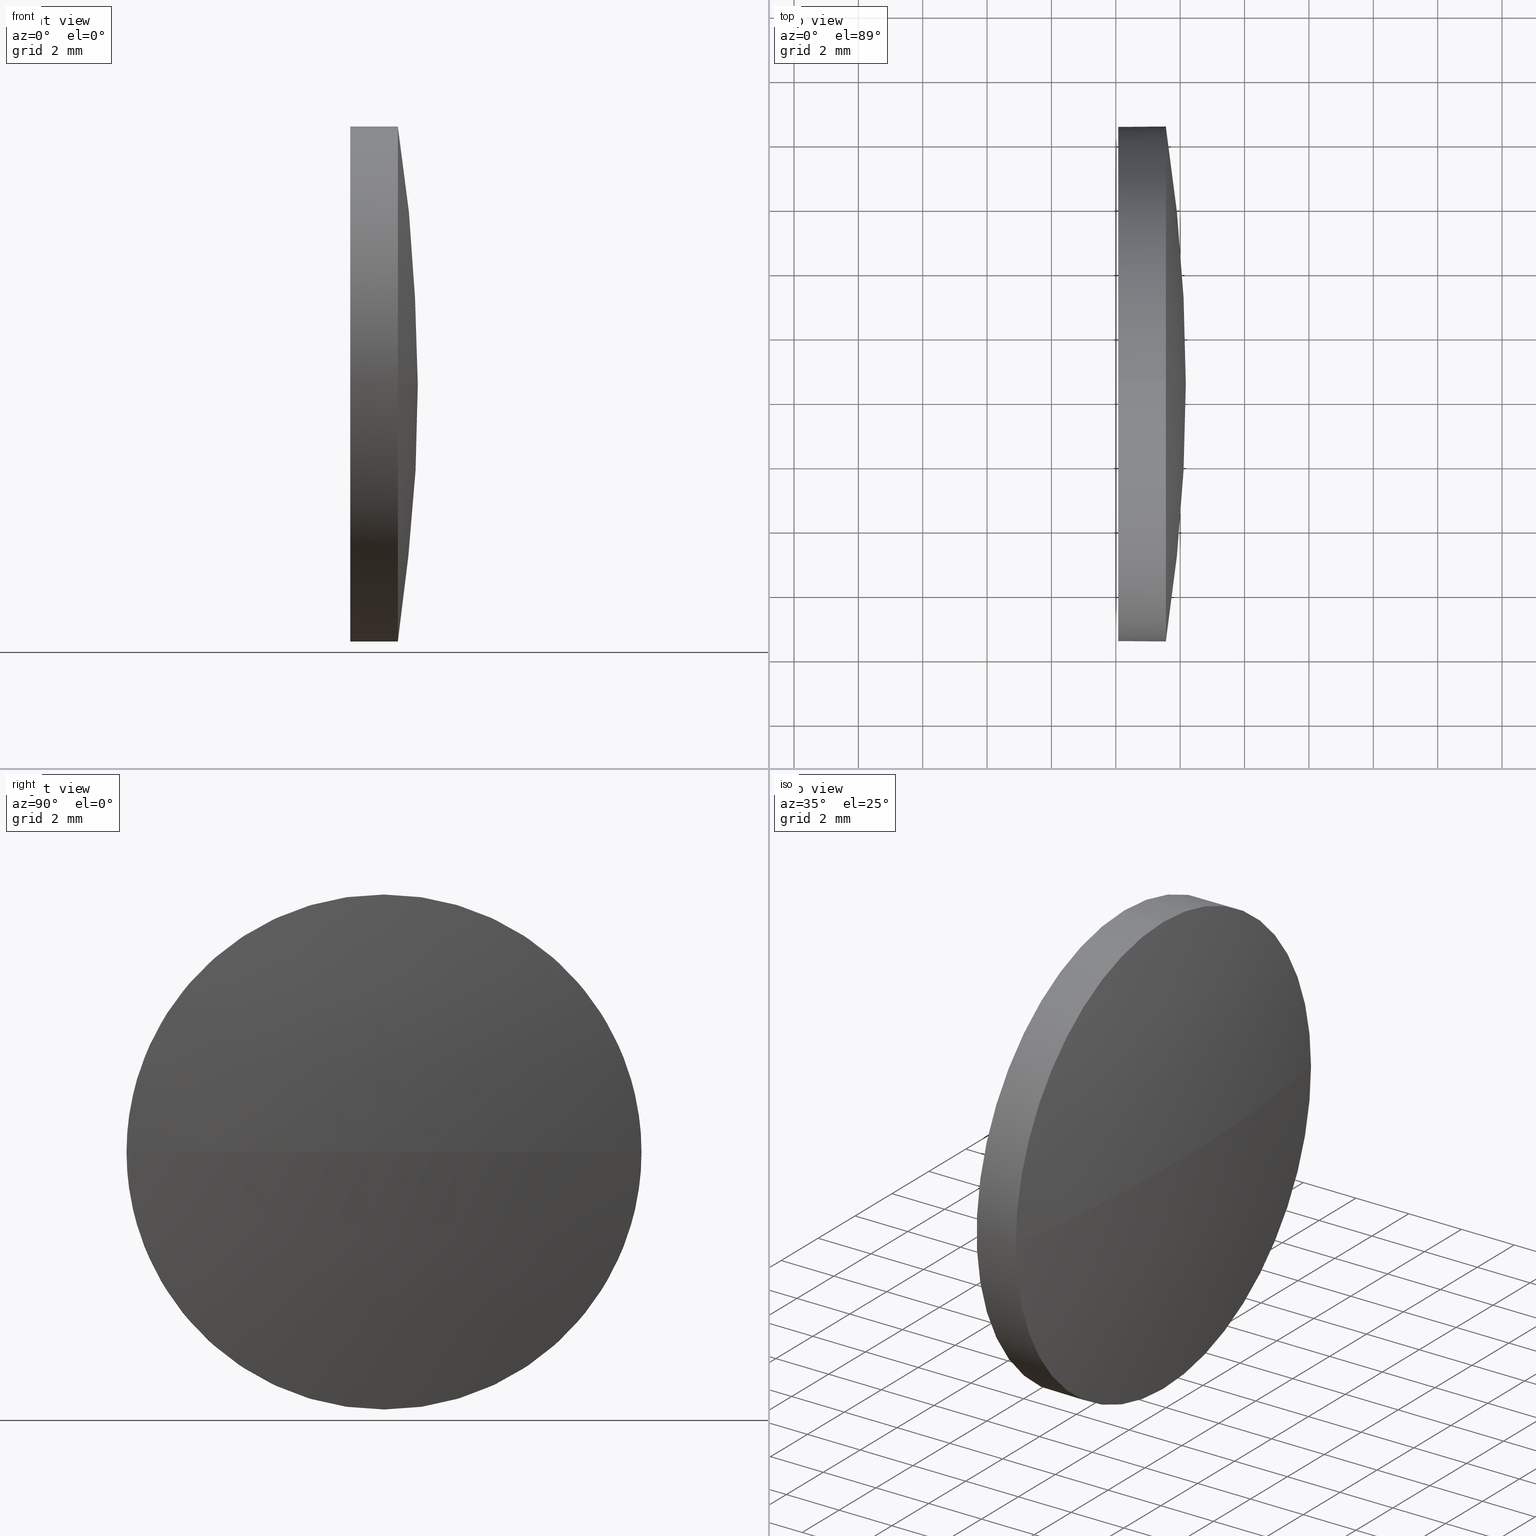
[diagram: canonical four-view strip — front | top / right | iso, engineering-drawing reading convention]
A machine part, canonical four-view strip (front | top / right | iso — engineering-drawing reading convention). The complete STEP part file that produces these views, byte-faithful:
ISO-10303-21;
HEADER;
FILE_DESCRIPTION (( 'STEP AP214' ),
    '1' );
FILE_NAME ('100118.STEP',
    '2019-05-14T03:52:08',
    ( '' ),
    ( '' ),
    'SwSTEP 2.0',
    'SolidWorks 2016',
    '' );
FILE_SCHEMA (( 'AUTOMOTIVE_DESIGN' ));
ENDSEC;

DATA;
#1 = EDGE_CURVE ( 'NONE', #99, #56, #101, .T. ) ;
#2 = DIRECTION ( 'NONE',  ( 1.000000000000000000, 0.0000000000000000000, 0.0000000000000000000 ) ) ;
#3 = FACE_OUTER_BOUND ( 'NONE', #47, .T. ) ;
#4 = CARTESIAN_POINT ( 'NONE',  ( 667.5536510589195100, 92.48951843981319600, -8.000000000000007100 ) ) ;
#5 = DIRECTION ( 'NONE',  ( 0.0000000000000000000, 0.0000000000000000000, 1.000000000000000000 ) ) ;
#6 = EDGE_CURVE ( 'NONE', #140, #27, #28, .T. ) ;
#7 = DIRECTION ( 'NONE',  ( -1.000000000000000000, -0.0000000000000000000, -0.0000000000000000000 ) ) ;
#8 = ADVANCED_FACE ( 'NONE', ( #3 ), #35, .T. ) ;
#9 = DIRECTION ( 'NONE',  ( 0.0000000000000000000, -1.000000000000000000, 0.0000000000000000000 ) ) ;
#10 = CARTESIAN_POINT ( 'NONE',  ( 0.0000000000000000000, 0.0000000000000000000, 0.0000000000000000000 ) ) ;
#11 = COLOUR_RGB ( '',1.000000000000000000, 1.000000000000000000, 1.000000000000000000 ) ;
#12 = ORIENTED_EDGE ( 'NONE', *, *, #177, .F. ) ;
#13 = AXIS2_PLACEMENT_3D ( 'NONE', #144, #31, #9 ) ;
#14 = ORIENTED_EDGE ( 'NONE', *, *, #6, .F. ) ;
#15 = ORIENTED_EDGE ( 'NONE', *, *, #154, .F. ) ;
#16 = PRODUCT ( '100118', '100118', '', ( #93 ) ) ;
#17 = CARTESIAN_POINT ( 'NONE',  ( 666.0736510589196100, 92.48951843981319600, 0.0000000000000000000 ) ) ;
#18 = DIRECTION ( 'NONE',  ( 0.0000000000000000000, 0.0000000000000000000, -1.000000000000000000 ) ) ;
#19 = SPHERICAL_SURFACE ( 'NONE', #61, 51.92290322580650000 ) ;
#20 = EDGE_LOOP ( 'NONE', ( #128, #108, #174, #146 ) ) ;
#21 = CARTESIAN_POINT ( 'NONE',  ( 667.5536510589195100, 100.4895184398132200, 9.797174393178378000E-016 ) ) ;
#22 = CARTESIAN_POINT ( 'NONE',  ( 668.1736510589194000, 92.48951843981359400, 0.0000000000000000000 ) ) ;
#23 = FACE_OUTER_BOUND ( 'NONE', #161, .T. ) ;
#24 = DIRECTION ( 'NONE',  ( 0.0000000000000000000, 0.0000000000000000000, 1.000000000000000000 ) ) ;
#25 = UNCERTAINTY_MEASURE_WITH_UNIT (LENGTH_MEASURE( 1.000000000000000100E-005 ), #87, 'distance_accuracy_value', 'NONE');
#26 =( LENGTH_UNIT ( ) NAMED_UNIT ( * ) SI_UNIT ( .MILLI., .METRE. ) );
#27 = VERTEX_POINT ( 'NONE', #149 ) ;
#28 = CIRCLE ( 'NONE', #43, 8.000000000000007100 ) ;
#29 = CARTESIAN_POINT ( 'NONE',  ( 667.5536510589195100, 84.48951843981356500, 0.0000000000000000000 ) ) ;
#30 = CARTESIAN_POINT ( 'NONE',  ( 666.0736510589196100, 92.48951843981319600, 0.0000000000000000000 ) ) ;
#31 = DIRECTION ( 'NONE',  ( 0.0000000000000000000, 0.0000000000000000000, 1.000000000000000000 ) ) ;
#32 = VERTEX_POINT ( 'NONE', #29 ) ;
#33 = DIRECTION ( 'NONE',  ( -1.000000000000000000, -0.0000000000000000000, -0.0000000000000000000 ) ) ;
#34 = FILL_AREA_STYLE_COLOUR ( '', #11 ) ;
#35 = CYLINDRICAL_SURFACE ( 'NONE', #97, 8.000000000000007100 ) ;
#36 = DIRECTION ( 'NONE',  ( 1.000000000000000000, 0.0000000000000000000, 0.0000000000000000000 ) ) ;
#37 = ORIENTED_EDGE ( 'NONE', *, *, #162, .T. ) ;
#38 = AXIS2_PLACEMENT_3D ( 'NONE', #167, #105, #85 ) ;
#39 = SURFACE_SIDE_STYLE ('',( #152 ) ) ;
#40 = ADVANCED_FACE ( 'NONE', ( #23 ), #111, .F. ) ;
#41 = PRODUCT_RELATED_PRODUCT_CATEGORY ( 'part', '', ( #16 ) ) ;
#42 = ORIENTED_EDGE ( 'NONE', *, *, #1, .T. ) ;
#43 = AXIS2_PLACEMENT_3D ( 'NONE', #30, #33, #126 ) ;
#44 = SPHERICAL_SURFACE ( 'NONE', #13, 51.92290322580650000 ) ;
#45 = ORIENTED_EDGE ( 'NONE', *, *, #148, .T. ) ;
#46 = CARTESIAN_POINT ( 'NONE',  ( 667.5536510589195100, 92.48951843981319600, 0.0000000000000000000 ) ) ;
#47 = EDGE_LOOP ( 'NONE', ( #42, #37, #170, #113, #45 ) ) ;
#48 = DIRECTION ( 'NONE',  ( -1.000000000000000000, -0.0000000000000000000, -0.0000000000000000000 ) ) ;
#49 = CARTESIAN_POINT ( 'NONE',  ( 664.1508343540738200, 92.48951843981319600, 0.0000000000000000000 ) ) ;
#50 = CARTESIAN_POINT ( 'NONE',  ( 667.5536510589195100, 92.48951843981319600, 0.0000000000000000000 ) ) ;
#51 = PRESENTATION_LAYER_ASSIGNMENT (  '', '', ( #96 ) ) ;
#52 = DIRECTION ( 'NONE',  ( 0.0000000000000000000, -1.224646799147353200E-016, 1.000000000000000000 ) ) ;
#53 =( NAMED_UNIT ( * ) SI_UNIT ( $, .STERADIAN. ) SOLID_ANGLE_UNIT ( ) );
#54 =( GEOMETRIC_REPRESENTATION_CONTEXT ( 3 ) GLOBAL_UNCERTAINTY_ASSIGNED_CONTEXT ( ( #102 ) ) GLOBAL_UNIT_ASSIGNED_CONTEXT ( ( #26, #120, #91 ) ) REPRESENTATION_CONTEXT ( 'NONE', 'WORKASPACE' ) );
#55 = AXIS2_PLACEMENT_3D ( 'NONE', #129, #150, #59 ) ;
#56 = VERTEX_POINT ( 'NONE', #4 ) ;
#57 = PRESENTATION_LAYER_ASSIGNMENT (  '', '', ( #114 ) ) ;
#58 = ORIENTED_EDGE ( 'NONE', *, *, #154, .T. ) ;
#59 = DIRECTION ( 'NONE',  ( -1.000000000000000000, 0.0000000000000000000, 0.0000000000000000000 ) ) ;
#60 = CARTESIAN_POINT ( 'NONE',  ( 667.5536510589195100, 92.48951843981319600, 0.0000000000000000000 ) ) ;
#61 = AXIS2_PLACEMENT_3D ( 'NONE', #179, #5, #168 ) ;
#62 = CARTESIAN_POINT ( 'NONE',  ( 616.2507478331130000, 92.48951843981359400, 0.0000000000000000000 ) ) ;
#63 = ADVANCED_FACE ( 'NONE', ( #183 ), #44, .T. ) ;
#64 = DIRECTION ( 'NONE',  ( -1.000000000000000000, -0.0000000000000000000, -0.0000000000000000000 ) ) ;
#65 = DIRECTION ( 'NONE',  ( 0.0000000000000000000, -1.000000000000000000, -1.224646799147353200E-016 ) ) ;
#66 = CIRCLE ( 'NONE', #55, 51.92290322580650800 ) ;
#67 = APPLICATION_CONTEXT ( 'automotive_design' ) ;
#68 =( GEOMETRIC_REPRESENTATION_CONTEXT ( 3 ) GLOBAL_UNCERTAINTY_ASSIGNED_CONTEXT ( ( #25 ) ) GLOBAL_UNIT_ASSIGNED_CONTEXT ( ( #87, #104, #131 ) ) REPRESENTATION_CONTEXT ( 'NONE', 'WORKASPACE' ) );
#69 = APPLICATION_PROTOCOL_DEFINITION ( 'draft international standard', 'automotive_design', 1998, #181 ) ;
#70 = SURFACE_STYLE_FILL_AREA ( #178 ) ;
#71 = EDGE_LOOP ( 'NONE', ( #78, #58, #94, #80, #14 ) ) ;
#72 = CIRCLE ( 'NONE', #38, 8.000000000000007100 ) ;
#73 = EDGE_CURVE ( 'NONE', #27, #140, #89, .T. ) ;
#74 = CARTESIAN_POINT ( 'NONE',  ( 664.1508343540738200, 92.48951843981319600, 0.0000000000000000000 ) ) ;
#75 = FILL_AREA_STYLE_COLOUR ( '', #145 ) ;
#76 = CARTESIAN_POINT ( 'NONE',  ( 667.5536510589195100, 92.48951843981319600, 8.000000000000007100 ) ) ;
#77 = FACE_OUTER_BOUND ( 'NONE', #71, .T. ) ;
#78 = ORIENTED_EDGE ( 'NONE', *, *, #162, .F. ) ;
#79 = LINE ( 'NONE', #134, #185 ) ;
#80 = ORIENTED_EDGE ( 'NONE', *, *, #84, .T. ) ;
#81 = UNCERTAINTY_MEASURE_WITH_UNIT (LENGTH_MEASURE( 1.000000000000000100E-005 ), #86, 'distance_accuracy_value', 'NONE');
#82 = AXIS2_PLACEMENT_3D ( 'NONE', #49, #117, #132 ) ;
#83 = VERTEX_POINT ( 'NONE', #76 ) ;
#84 = EDGE_CURVE ( 'NONE', #83, #27, #112, .T. ) ;
#85 = DIRECTION ( 'NONE',  ( 0.0000000000000000000, 0.0000000000000000000, 1.000000000000000000 ) ) ;
#86 =( LENGTH_UNIT ( ) NAMED_UNIT ( * ) SI_UNIT ( .MILLI., .METRE. ) );
#87 =( LENGTH_UNIT ( ) NAMED_UNIT ( * ) SI_UNIT ( .MILLI., .METRE. ) );
#88 = SURFACE_STYLE_USAGE ( .BOTH. , #169 ) ;
#89 = CIRCLE ( 'NONE', #110, 8.000000000000007100 ) ;
#90 = DIRECTION ( 'NONE',  ( 0.0000000000000000000, 0.0000000000000000000, 1.000000000000000000 ) ) ;
#91 =( NAMED_UNIT ( * ) SI_UNIT ( $, .STERADIAN. ) SOLID_ANGLE_UNIT ( ) );
#92 =( GEOMETRIC_REPRESENTATION_CONTEXT ( 3 ) GLOBAL_UNCERTAINTY_ASSIGNED_CONTEXT ( ( #81 ) ) GLOBAL_UNIT_ASSIGNED_CONTEXT ( ( #86, #160, #53 ) ) REPRESENTATION_CONTEXT ( 'NONE', 'WORKASPACE' ) );
#93 = PRODUCT_CONTEXT ( 'NONE', #67, 'mechanical' ) ;
#94 = ORIENTED_EDGE ( 'NONE', *, *, #172, .T. ) ;
#95 = ORIENTED_EDGE ( 'NONE', *, *, #6, .T. ) ;
#96 = STYLED_ITEM ( 'NONE', ( #137 ), #164 ) ;
#97 = AXIS2_PLACEMENT_3D ( 'NONE', #74, #127, #163 ) ;
#98 = PRODUCT_DEFINITION_CONTEXT ( 'detailed design', #181, 'design' ) ;
#99 = VERTEX_POINT ( 'NONE', #21 ) ;
#100 = CIRCLE ( 'NONE', #130, 8.000000000000007100 ) ;
#101 = CIRCLE ( 'NONE', #141, 8.000000000000007100 ) ;
#102 = UNCERTAINTY_MEASURE_WITH_UNIT (LENGTH_MEASURE( 1.000000000000000100E-005 ), #26, 'distance_accuracy_value', 'NONE');
#103 = MECHANICAL_DESIGN_GEOMETRIC_PRESENTATION_REPRESENTATION (  '', ( #96 ), #54 ) ;
#104 =( NAMED_UNIT ( * ) PLANE_ANGLE_UNIT ( ) SI_UNIT ( $, .RADIAN. ) );
#105 = DIRECTION ( 'NONE',  ( -1.000000000000000000, -0.0000000000000000000, -0.0000000000000000000 ) ) ;
#106 = FILL_AREA_STYLE ('',( #34 ) ) ;
#107 = ORIENTED_EDGE ( 'NONE', *, *, #1, .F. ) ;
#108 = ORIENTED_EDGE ( 'NONE', *, *, #177, .T. ) ;
#109 = PRODUCT_DEFINITION_SHAPE ( 'NONE', 'NONE',  #143 ) ;
#110 = AXIS2_PLACEMENT_3D ( 'NONE', #151, #7, #156 ) ;
#111 = PLANE ( 'NONE',  #124 ) ;
#112 = LINE ( 'NONE', #165, #142 ) ;
#113 = ORIENTED_EDGE ( 'NONE', *, *, #84, .F. ) ;
#114 = STYLED_ITEM ( 'NONE', ( #133 ), #157 ) ;
#115 = AXIS2_PLACEMENT_3D ( 'NONE', #10, #24, #36 ) ;
#116 = DIRECTION ( 'NONE',  ( 0.0000000000000000000, 0.0000000000000000000, 1.000000000000000000 ) ) ;
#117 = DIRECTION ( 'NONE',  ( -1.000000000000000000, -0.0000000000000000000, -0.0000000000000000000 ) ) ;
#118 = SHAPE_DEFINITION_REPRESENTATION ( #109, #164 ) ;
#119 = VERTEX_POINT ( 'NONE', #22 ) ;
#120 =( NAMED_UNIT ( * ) PLANE_ANGLE_UNIT ( ) SI_UNIT ( $, .RADIAN. ) );
#121 = PRODUCT_DEFINITION_FORMATION_WITH_SPECIFIED_SOURCE ( '�κ�', '', #16, .NOT_KNOWN. ) ;
#122 = MECHANICAL_DESIGN_GEOMETRIC_PRESENTATION_REPRESENTATION (  '', ( #114 ), #68 ) ;
#123 = FACE_OUTER_BOUND ( 'NONE', #20, .T. ) ;
#124 = AXIS2_PLACEMENT_3D ( 'NONE', #17, #2, #18 ) ;
#125 = CLOSED_SHELL ( 'NONE', ( #8, #184, #63, #171, #40 ) ) ;
#126 = DIRECTION ( 'NONE',  ( 0.0000000000000000000, 0.0000000000000000000, 1.000000000000000000 ) ) ;
#127 = DIRECTION ( 'NONE',  ( -1.000000000000000000, -0.0000000000000000000, -0.0000000000000000000 ) ) ;
#128 = ORIENTED_EDGE ( 'NONE', *, *, #186, .F. ) ;
#129 = CARTESIAN_POINT ( 'NONE',  ( 616.2507478331130000, 92.48951843981359400, 0.0000000000000000000 ) ) ;
#130 = AXIS2_PLACEMENT_3D ( 'NONE', #50, #155, #90 ) ;
#131 =( NAMED_UNIT ( * ) SI_UNIT ( $, .STERADIAN. ) SOLID_ANGLE_UNIT ( ) );
#132 = DIRECTION ( 'NONE',  ( 0.0000000000000000000, 0.0000000000000000000, 1.000000000000000000 ) ) ;
#133 = PRESENTATION_STYLE_ASSIGNMENT (( #88 ) ) ;
#134 = CARTESIAN_POINT ( 'NONE',  ( 664.1508343540738200, 92.48951843981319600, -8.000000000000007100 ) ) ;
#135 = CARTESIAN_POINT ( 'NONE',  ( 666.0736510589196100, 92.48951843981319600, -8.000000000000007100 ) ) ;
#136 = APPLICATION_PROTOCOL_DEFINITION ( 'draft international standard', 'automotive_design', 1998, #67 ) ;
#137 = PRESENTATION_STYLE_ASSIGNMENT (( #180 ) ) ;
#138 = CIRCLE ( 'NONE', #166, 8.000000000000007100 ) ;
#139 = ORIENTED_EDGE ( 'NONE', *, *, #186, .T. ) ;
#140 = VERTEX_POINT ( 'NONE', #135 ) ;
#141 = AXIS2_PLACEMENT_3D ( 'NONE', #46, #147, #175 ) ;
#142 = VECTOR ( 'NONE', #64, 1000.000000000000000 ) ;
#143 = PRODUCT_DEFINITION ( 'δ֪', '', #121, #98 ) ;
#144 = CARTESIAN_POINT ( 'NONE',  ( 616.2507478331130000, 92.48951843981359400, 0.0000000000000000000 ) ) ;
#145 = COLOUR_RGB ( '',1.000000000000000000, 1.000000000000000000, 1.000000000000000000 ) ;
#146 = ORIENTED_EDGE ( 'NONE', *, *, #172, .F. ) ;
#147 = DIRECTION ( 'NONE',  ( -1.000000000000000000, -0.0000000000000000000, -0.0000000000000000000 ) ) ;
#148 = EDGE_CURVE ( 'NONE', #83, #99, #138, .T. ) ;
#149 = CARTESIAN_POINT ( 'NONE',  ( 666.0736510589196100, 92.48951843981319600, 8.000000000000007100 ) ) ;
#150 = DIRECTION ( 'NONE',  ( 0.0000000000000000000, 0.0000000000000000000, -1.000000000000000000 ) ) ;
#151 = CARTESIAN_POINT ( 'NONE',  ( 666.0736510589196100, 92.48951843981319600, 0.0000000000000000000 ) ) ;
#152 = SURFACE_STYLE_FILL_AREA ( #106 ) ;
#153 = DIRECTION ( 'NONE',  ( -1.000000000000000000, -0.0000000000000000000, -0.0000000000000000000 ) ) ;
#154 = EDGE_CURVE ( 'NONE', #56, #32, #72, .T. ) ;
#155 = DIRECTION ( 'NONE',  ( -1.000000000000000000, -0.0000000000000000000, -0.0000000000000000000 ) ) ;
#156 = DIRECTION ( 'NONE',  ( 0.0000000000000000000, 0.0000000000000000000, 1.000000000000000000 ) ) ;
#157 = MANIFOLD_SOLID_BREP ( '��ת1', #125 ) ;
#158 = CYLINDRICAL_SURFACE ( 'NONE', #82, 8.000000000000007100 ) ;
#159 = EDGE_LOOP ( 'NONE', ( #12, #139, #15, #107 ) ) ;
#160 =( NAMED_UNIT ( * ) PLANE_ANGLE_UNIT ( ) SI_UNIT ( $, .RADIAN. ) );
#161 = EDGE_LOOP ( 'NONE', ( #173, #95 ) ) ;
#162 = EDGE_CURVE ( 'NONE', #56, #140, #79, .T. ) ;
#163 = DIRECTION ( 'NONE',  ( 0.0000000000000000000, 0.0000000000000000000, 1.000000000000000000 ) ) ;
#164 = ADVANCED_BREP_SHAPE_REPRESENTATION ( '100118', ( #157, #115 ), #92 ) ;
#165 = CARTESIAN_POINT ( 'NONE',  ( 664.1508343540738200, 92.48951843981319600, 8.000000000000007100 ) ) ;
#166 = AXIS2_PLACEMENT_3D ( 'NONE', #60, #153, #116 ) ;
#167 = CARTESIAN_POINT ( 'NONE',  ( 667.5536510589195100, 92.48951843981319600, 0.0000000000000000000 ) ) ;
#168 = DIRECTION ( 'NONE',  ( 0.0000000000000000000, -1.000000000000000000, 0.0000000000000000000 ) ) ;
#169 = SURFACE_SIDE_STYLE ('',( #70 ) ) ;
#170 = ORIENTED_EDGE ( 'NONE', *, *, #73, .F. ) ;
#171 = ADVANCED_FACE ( 'NONE', ( #77 ), #158, .T. ) ;
#172 = EDGE_CURVE ( 'NONE', #32, #83, #100, .T. ) ;
#173 = ORIENTED_EDGE ( 'NONE', *, *, #73, .T. ) ;
#174 = ORIENTED_EDGE ( 'NONE', *, *, #148, .F. ) ;
#175 = DIRECTION ( 'NONE',  ( 0.0000000000000000000, 0.0000000000000000000, 1.000000000000000000 ) ) ;
#176 = CIRCLE ( 'NONE', #182, 51.92290322580650000 ) ;
#177 = EDGE_CURVE ( 'NONE', #119, #99, #176, .T. ) ;
#178 = FILL_AREA_STYLE ('',( #75 ) ) ;
#179 = CARTESIAN_POINT ( 'NONE',  ( 616.2507478331130000, 92.48951843981359400, 0.0000000000000000000 ) ) ;
#180 = SURFACE_STYLE_USAGE ( .BOTH. , #39 ) ;
#181 = APPLICATION_CONTEXT ( 'automotive_design' ) ;
#182 = AXIS2_PLACEMENT_3D ( 'NONE', #62, #52, #65 ) ;
#183 = FACE_OUTER_BOUND ( 'NONE', #159, .T. ) ;
#184 = ADVANCED_FACE ( 'NONE', ( #123 ), #19, .T. ) ;
#185 = VECTOR ( 'NONE', #48, 1000.000000000000000 ) ;
#186 = EDGE_CURVE ( 'NONE', #119, #32, #66, .T. ) ;
ENDSEC;
END-ISO-10303-21;
